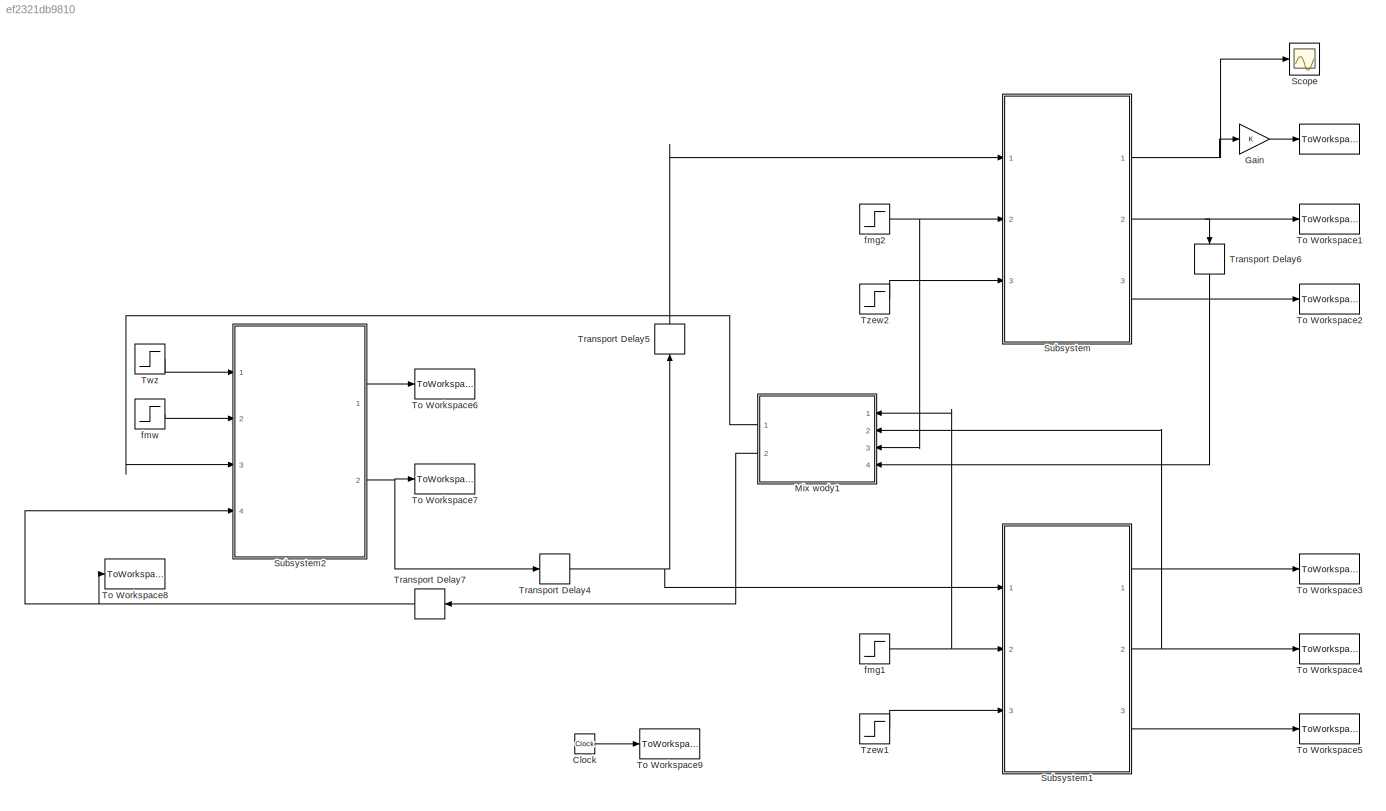
MODEL slx_ef2321db9810
KIND model
CONFIG AbsTol = auto
CONFIG EnableMultiTasking = on
CONFIG FixedStep = auto
CONFIG MaxStep = auto
CONFIG MinStep = auto
CONFIG RelTol = 1e-3
CONFIG SampleTimeConstraint = Unconstrained
CONFIG Solver = ode45
CONFIG SolverName = ode45
CONFIG StartTime = 0.0
CONFIG StopTime = 10.0
BLOCK [ToWorkspace]  
  MaxDataPoints = inf
  Ports = [1]
  SampleTime = -1
  SaveFormat = Structure With Time
  VariableName = Twew2
BLOCK [Clock] Clock
BLOCK [Gain] Gain
  OutDataTypeStr = Inherit: Inherit via internal rule
  ParamDataTypeStr = Inherit: Inherit via internal rule
  SaturateOnIntegerOverflow = off
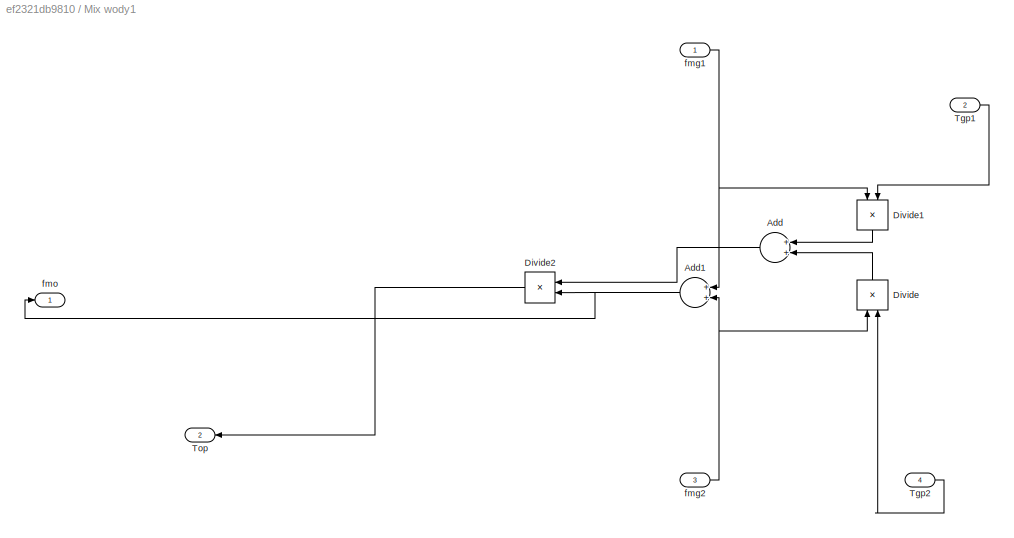
BLOCK [SubSystem] Mix wody1
  Ports = [4, 2]
  RequestExecContextInheritance = off
BLOCK [Sum] Mix wody1/Add
  InputSameDT = off
  OutDataTypeStr = Inherit: Inherit via internal rule
  Ports = [2, 1]
  SaturateOnIntegerOverflow = off
BLOCK [Sum] Mix wody1/Add1
  InputSameDT = off
  OutDataTypeStr = Inherit: Inherit via internal rule
  Ports = [2, 1]
  SaturateOnIntegerOverflow = off
BLOCK [Product] Mix wody1/Divide
  InputSameDT = off
  Inputs = **
  OutDataTypeStr = Inherit: Inherit via internal rule
  Ports = [2, 1]
  RndMeth = Floor
  SaturateOnIntegerOverflow = off
BLOCK [Product] Mix wody1/Divide1
  InputSameDT = off
  Inputs = **
  OutDataTypeStr = Inherit: Inherit via internal rule
  Ports = [2, 1]
  RndMeth = Floor
  SaturateOnIntegerOverflow = off
BLOCK [Product] Mix wody1/Divide2
  InputSameDT = off
  Inputs = */
  OutDataTypeStr = Inherit: Inherit via internal rule
  Ports = [2, 1]
  RndMeth = Floor
  SaturateOnIntegerOverflow = off
BLOCK [Inport] Mix wody1/Tgp1
  IconDisplay = Port number
  Port = 2
BLOCK [Inport] Mix wody1/Tgp2
  IconDisplay = Port number
  Port = 4
BLOCK [Outport] Mix wody1/Top
  IconDisplay = Port number
  Port = 2
BLOCK [Inport] Mix wody1/fmg1
  IconDisplay = Port number
BLOCK [Inport] Mix wody1/fmg2
  IconDisplay = Port number
  Port = 3
BLOCK [Outport] Mix wody1/fmo
  IconDisplay = Port number
BLOCK [Scope] Scope
  Floating = off
  NumInputPorts = 1
  Ports = [1]
  ScopeSpecificationString = Simulink.scopes.TimeScopeBlockCfg('CurrentConfiguration', extmgr.ConfigurationSet(extmgr.Configuration('Core','General UI',true),extmgr.Configuration('Core','Source UI',true),extmgr.Configuration('Sources','WiredSimulink',true,'DataLoggingVariableName','TwewS','DataLogging',true,'DataLoggingLimitDataPoints',true,'DataLoggingSaveFormat','StructureWithTime'),extmgr.Configuration('Visuals','Time Doma...<+1541ch>
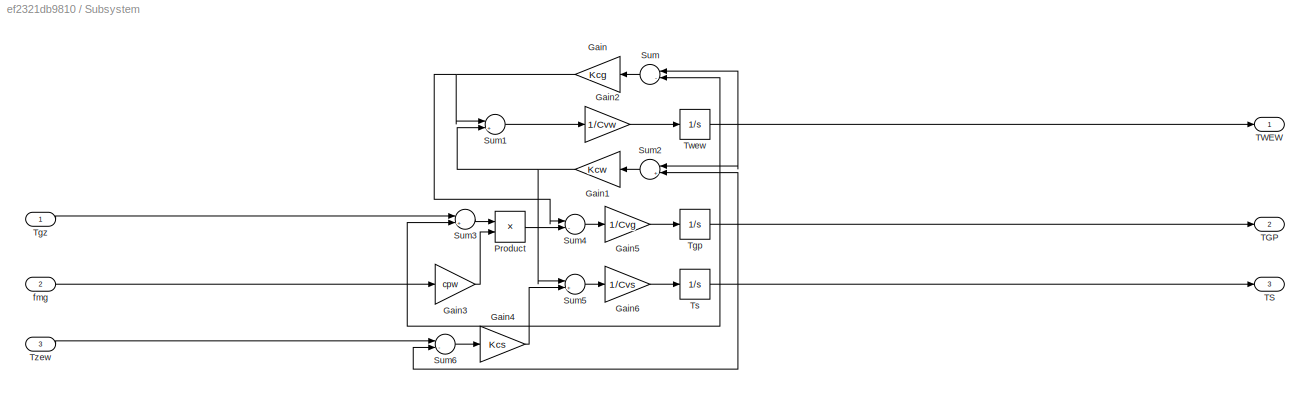
BLOCK [SubSystem] Subsystem
  Ports = [3, 3]
  RequestExecContextInheritance = off
BLOCK [Gain] Subsystem/Gain
  Gain = Kcg
  OutDataTypeStr = Inherit: Inherit via internal rule
  ParamDataTypeStr = Inherit: Inherit via internal rule
  SaturateOnIntegerOverflow = off
BLOCK [Gain] Subsystem/Gain1
  Gain = Kcw
  OutDataTypeStr = Inherit: Inherit via internal rule
  ParamDataTypeStr = Inherit: Inherit via internal rule
  SaturateOnIntegerOverflow = off
BLOCK [Gain] Subsystem/Gain2
  Gain = 1/Cvw
  OutDataTypeStr = Inherit: Inherit via internal rule
  ParamDataTypeStr = Inherit: Inherit via internal rule
  SaturateOnIntegerOverflow = off
BLOCK [Gain] Subsystem/Gain3
  Gain = cpw
  OutDataTypeStr = Inherit: Inherit via internal rule
  ParamDataTypeStr = Inherit: Inherit via internal rule
  SaturateOnIntegerOverflow = off
BLOCK [Gain] Subsystem/Gain4
  Gain = Kcs
  OutDataTypeStr = Inherit: Inherit via internal rule
  ParamDataTypeStr = Inherit: Inherit via internal rule
  SaturateOnIntegerOverflow = off
BLOCK [Gain] Subsystem/Gain5
  Gain = 1/Cvg
  OutDataTypeStr = Inherit: Inherit via internal rule
  ParamDataTypeStr = Inherit: Inherit via internal rule
  SaturateOnIntegerOverflow = off
BLOCK [Gain] Subsystem/Gain6
  Gain = 1/Cvs
  OutDataTypeStr = Inherit: Inherit via internal rule
  ParamDataTypeStr = Inherit: Inherit via internal rule
  SaturateOnIntegerOverflow = off
BLOCK [Product] Subsystem/Product
  InputSameDT = off
  OutDataTypeStr = Inherit: Inherit via internal rule
  Ports = [2, 1]
  RndMeth = Floor
  SaturateOnIntegerOverflow = off
BLOCK [Sum] Subsystem/Sum
  InputSameDT = off
  Inputs = |-+
  OutDataTypeStr = Inherit: Inherit via internal rule
  Ports = [2, 1]
  SaturateOnIntegerOverflow = off
BLOCK [Sum] Subsystem/Sum1
  InputSameDT = off
  Inputs = |+-
  OutDataTypeStr = Inherit: Inherit via internal rule
  Ports = [2, 1]
  SaturateOnIntegerOverflow = off
BLOCK [Sum] Subsystem/Sum2
  InputSameDT = off
  Inputs = |+-
  OutDataTypeStr = Inherit: Inherit via internal rule
  Ports = [2, 1]
  SaturateOnIntegerOverflow = off
BLOCK [Sum] Subsystem/Sum3
  InputSameDT = off
  Inputs = |+-
  OutDataTypeStr = Inherit: Inherit via internal rule
  Ports = [2, 1]
  SaturateOnIntegerOverflow = off
BLOCK [Sum] Subsystem/Sum4
  InputSameDT = off
  Inputs = |-+
  OutDataTypeStr = Inherit: Inherit via internal rule
  Ports = [2, 1]
  SaturateOnIntegerOverflow = off
BLOCK [Sum] Subsystem/Sum5
  InputSameDT = off
  Inputs = |+-
  OutDataTypeStr = Inherit: Inherit via internal rule
  Ports = [2, 1]
  SaturateOnIntegerOverflow = off
BLOCK [Sum] Subsystem/Sum6
  InputSameDT = off
  Inputs = |-+
  OutDataTypeStr = Inherit: Inherit via internal rule
  Ports = [2, 1]
  SaturateOnIntegerOverflow = off
BLOCK [Outport] Subsystem/TGP
  IconDisplay = Port number
  Port = 2
BLOCK [Outport] Subsystem/TS
  IconDisplay = Port number
  Port = 3
BLOCK [Outport] Subsystem/TWEW
  IconDisplay = Port number
BLOCK [Integrator] Subsystem/Tgp
  InitialCondition = Tgp0
  Ports = [1, 1]
BLOCK [Inport] Subsystem/Tgz
  IconDisplay = Port number
BLOCK [Integrator] Subsystem/Ts
  InitialCondition = Ts0
  Ports = [1, 1]
BLOCK [Integrator] Subsystem/Twew
  InitialCondition = Twew0
  Ports = [1, 1]
BLOCK [Inport] Subsystem/Tzew
  IconDisplay = Port number
  Port = 3
BLOCK [Inport] Subsystem/fmg
  IconDisplay = Port number
  Port = 2
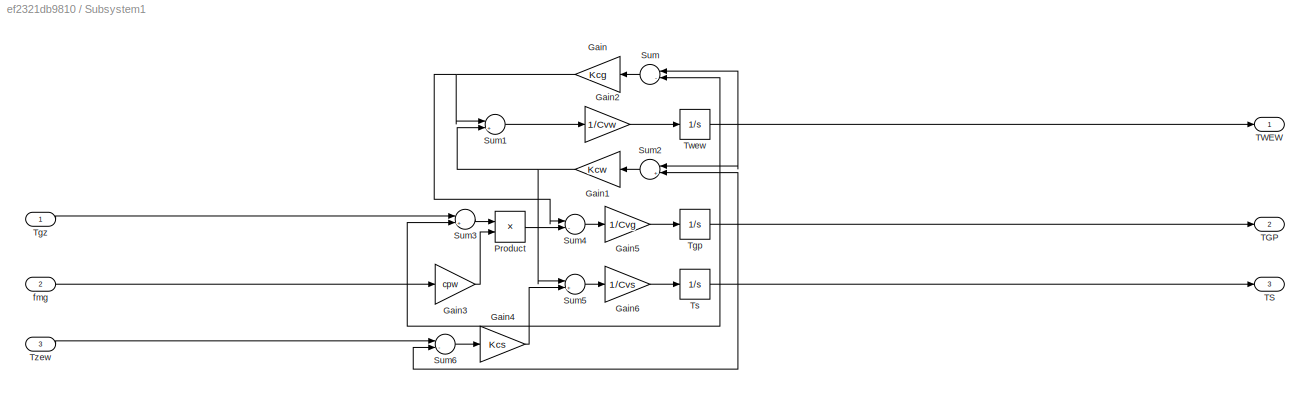
BLOCK [SubSystem] Subsystem1
  Ports = [3, 3]
  RequestExecContextInheritance = off
BLOCK [Gain] Subsystem1/Gain
  Gain = Kcg
  OutDataTypeStr = Inherit: Inherit via internal rule
  ParamDataTypeStr = Inherit: Inherit via internal rule
  SaturateOnIntegerOverflow = off
BLOCK [Gain] Subsystem1/Gain1
  Gain = Kcw
  OutDataTypeStr = Inherit: Inherit via internal rule
  ParamDataTypeStr = Inherit: Inherit via internal rule
  SaturateOnIntegerOverflow = off
BLOCK [Gain] Subsystem1/Gain2
  Gain = 1/Cvw
  OutDataTypeStr = Inherit: Inherit via internal rule
  ParamDataTypeStr = Inherit: Inherit via internal rule
  SaturateOnIntegerOverflow = off
BLOCK [Gain] Subsystem1/Gain3
  Gain = cpw
  OutDataTypeStr = Inherit: Inherit via internal rule
  ParamDataTypeStr = Inherit: Inherit via internal rule
  SaturateOnIntegerOverflow = off
BLOCK [Gain] Subsystem1/Gain4
  Gain = Kcs
  OutDataTypeStr = Inherit: Inherit via internal rule
  ParamDataTypeStr = Inherit: Inherit via internal rule
  SaturateOnIntegerOverflow = off
BLOCK [Gain] Subsystem1/Gain5
  Gain = 1/Cvg
  OutDataTypeStr = Inherit: Inherit via internal rule
  ParamDataTypeStr = Inherit: Inherit via internal rule
  SaturateOnIntegerOverflow = off
BLOCK [Gain] Subsystem1/Gain6
  Gain = 1/Cvs
  OutDataTypeStr = Inherit: Inherit via internal rule
  ParamDataTypeStr = Inherit: Inherit via internal rule
  SaturateOnIntegerOverflow = off
BLOCK [Product] Subsystem1/Product
  InputSameDT = off
  OutDataTypeStr = Inherit: Inherit via internal rule
  Ports = [2, 1]
  RndMeth = Floor
  SaturateOnIntegerOverflow = off
BLOCK [Sum] Subsystem1/Sum
  InputSameDT = off
  Inputs = |-+
  OutDataTypeStr = Inherit: Inherit via internal rule
  Ports = [2, 1]
  SaturateOnIntegerOverflow = off
BLOCK [Sum] Subsystem1/Sum1
  InputSameDT = off
  Inputs = |+-
  OutDataTypeStr = Inherit: Inherit via internal rule
  Ports = [2, 1]
  SaturateOnIntegerOverflow = off
BLOCK [Sum] Subsystem1/Sum2
  InputSameDT = off
  Inputs = |+-
  OutDataTypeStr = Inherit: Inherit via internal rule
  Ports = [2, 1]
  SaturateOnIntegerOverflow = off
BLOCK [Sum] Subsystem1/Sum3
  InputSameDT = off
  Inputs = |+-
  OutDataTypeStr = Inherit: Inherit via internal rule
  Ports = [2, 1]
  SaturateOnIntegerOverflow = off
BLOCK [Sum] Subsystem1/Sum4
  InputSameDT = off
  Inputs = |-+
  OutDataTypeStr = Inherit: Inherit via internal rule
  Ports = [2, 1]
  SaturateOnIntegerOverflow = off
BLOCK [Sum] Subsystem1/Sum5
  InputSameDT = off
  Inputs = |+-
  OutDataTypeStr = Inherit: Inherit via internal rule
  Ports = [2, 1]
  SaturateOnIntegerOverflow = off
BLOCK [Sum] Subsystem1/Sum6
  InputSameDT = off
  Inputs = |-+
  OutDataTypeStr = Inherit: Inherit via internal rule
  Ports = [2, 1]
  SaturateOnIntegerOverflow = off
BLOCK [Outport] Subsystem1/TGP
  IconDisplay = Port number
  Port = 2
BLOCK [Outport] Subsystem1/TS
  IconDisplay = Port number
  Port = 3
BLOCK [Outport] Subsystem1/TWEW
  IconDisplay = Port number
BLOCK [Integrator] Subsystem1/Tgp
  InitialCondition = Tgp0
  Ports = [1, 1]
BLOCK [Inport] Subsystem1/Tgz
  IconDisplay = Port number
BLOCK [Integrator] Subsystem1/Ts
  InitialCondition = Ts0
  Ports = [1, 1]
BLOCK [Integrator] Subsystem1/Twew
  InitialCondition = Twew0
  Ports = [1, 1]
BLOCK [Inport] Subsystem1/Tzew
  IconDisplay = Port number
  Port = 3
BLOCK [Inport] Subsystem1/fmg
  IconDisplay = Port number
  Port = 2
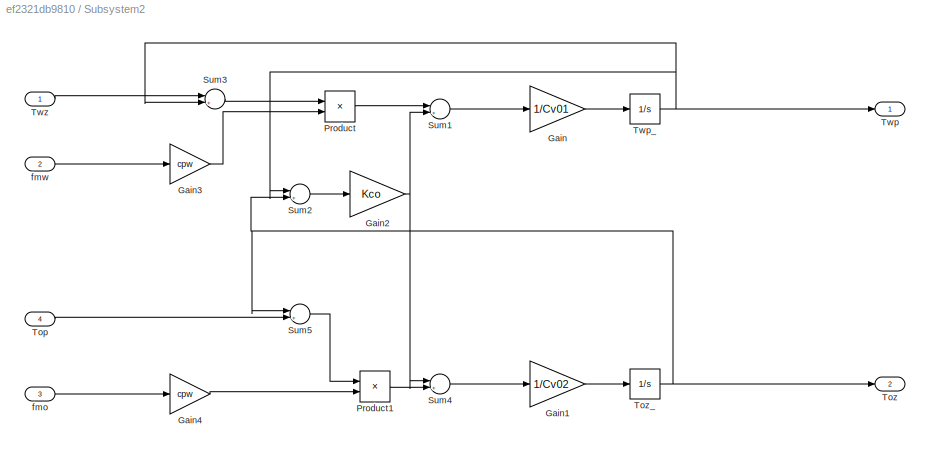
BLOCK [SubSystem] Subsystem2
  Ports = [4, 2]
  RequestExecContextInheritance = off
BLOCK [Gain] Subsystem2/Gain
  Gain = 1/Cv01
  OutDataTypeStr = Inherit: Inherit via internal rule
  ParamDataTypeStr = Inherit: Inherit via internal rule
  SaturateOnIntegerOverflow = off
BLOCK [Gain] Subsystem2/Gain1
  Gain = 1/Cv02
  OutDataTypeStr = Inherit: Inherit via internal rule
  ParamDataTypeStr = Inherit: Inherit via internal rule
  SaturateOnIntegerOverflow = off
BLOCK [Gain] Subsystem2/Gain2
  Gain = Kco
  OutDataTypeStr = Inherit: Inherit via internal rule
  ParamDataTypeStr = Inherit: Inherit via internal rule
  SaturateOnIntegerOverflow = off
BLOCK [Gain] Subsystem2/Gain3
  Gain = cpw
  OutDataTypeStr = Inherit: Inherit via internal rule
  ParamDataTypeStr = Inherit: Inherit via internal rule
  SaturateOnIntegerOverflow = off
BLOCK [Gain] Subsystem2/Gain4
  Gain = cpw
  OutDataTypeStr = Inherit: Inherit via internal rule
  ParamDataTypeStr = Inherit: Inherit via internal rule
  SaturateOnIntegerOverflow = off
BLOCK [Product] Subsystem2/Product
  InputSameDT = off
  OutDataTypeStr = Inherit: Inherit via internal rule
  Ports = [2, 1]
  RndMeth = Floor
  SaturateOnIntegerOverflow = off
BLOCK [Product] Subsystem2/Product1
  InputSameDT = off
  OutDataTypeStr = Inherit: Inherit via internal rule
  Ports = [2, 1]
  RndMeth = Floor
  SaturateOnIntegerOverflow = off
BLOCK [Sum] Subsystem2/Sum1
  InputSameDT = off
  Inputs = |+-
  OutDataTypeStr = Inherit: Inherit via internal rule
  Ports = [2, 1]
  SaturateOnIntegerOverflow = off
BLOCK [Sum] Subsystem2/Sum2
  InputSameDT = off
  Inputs = |+-
  OutDataTypeStr = Inherit: Inherit via internal rule
  Ports = [2, 1]
  SaturateOnIntegerOverflow = off
BLOCK [Sum] Subsystem2/Sum3
  InputSameDT = off
  Inputs = |+-
  OutDataTypeStr = Inherit: Inherit via internal rule
  Ports = [2, 1]
  SaturateOnIntegerOverflow = off
BLOCK [Sum] Subsystem2/Sum4
  InputSameDT = off
  Inputs = |+-
  OutDataTypeStr = Inherit: Inherit via internal rule
  Ports = [2, 1]
  SaturateOnIntegerOverflow = off
BLOCK [Sum] Subsystem2/Sum5
  InputSameDT = off
  Inputs = |+-
  OutDataTypeStr = Inherit: Inherit via internal rule
  Ports = [2, 1]
  SaturateOnIntegerOverflow = off
BLOCK [Inport] Subsystem2/Top
  IconDisplay = Port number
  Port = 4
BLOCK [Outport] Subsystem2/Toz
  IconDisplay = Port number
  Port = 2
BLOCK [Integrator] Subsystem2/Toz_
  InitialCondition = Toz0
  Ports = [1, 1]
BLOCK [Outport] Subsystem2/Twp
  IconDisplay = Port number
BLOCK [Integrator] Subsystem2/Twp_
  InitialCondition = Twp0
  Ports = [1, 1]
BLOCK [Inport] Subsystem2/Twz
  IconDisplay = Port number
BLOCK [Inport] Subsystem2/fmo
  IconDisplay = Port number
  Port = 3
BLOCK [Inport] Subsystem2/fmw
  IconDisplay = Port number
  Port = 2
BLOCK [ToWorkspace] To Workspace1
  MaxDataPoints = inf
  Ports = [1]
  SampleTime = -1
  VariableName = Tgp2
BLOCK [ToWorkspace] To Workspace2
  MaxDataPoints = inf
  Ports = [1]
  SampleTime = -1
  VariableName = Ts2
BLOCK [ToWorkspace] To Workspace3
  MaxDataPoints = inf
  Ports = [1]
  SampleTime = -1
  VariableName = Twew1
BLOCK [ToWorkspace] To Workspace4
  MaxDataPoints = inf
  Ports = [1]
  SampleTime = -1
  VariableName = Tgp1
BLOCK [ToWorkspace] To Workspace5
  MaxDataPoints = inf
  Ports = [1]
  SampleTime = -1
  VariableName = Ts1
BLOCK [ToWorkspace] To Workspace6
  MaxDataPoints = inf
  Ports = [1]
  SampleTime = -1
  VariableName = Twp
BLOCK [ToWorkspace] To Workspace7
  MaxDataPoints = inf
  Ports = [1]
  SampleTime = -1
  VariableName = Toz
BLOCK [ToWorkspace] To Workspace8
  MaxDataPoints = inf
  Ports = [1]
  SampleTime = -1
  VariableName = Top
BLOCK [ToWorkspace] To Workspace9
  FixptAsFi = on
  MaxDataPoints = inf
  Ports = [1]
  SampleTime = -1
  Save2DSignal = 3-D array (concatenate along third dimension)
  VariableName = t
BLOCK [TransportDelay] Transport Delay4
  DelayTime = Tdelay1
  InitialOutput = Toz0
  Ports = [1, 1]
BLOCK [TransportDelay] Transport Delay5
  DelayTime = Tdelay2
  InitialOutput = Toz0
  Ports = [1, 1]
BLOCK [TransportDelay] Transport Delay6
  DelayTime = Tdelay2
  InitialOutput = Tgp2_0
  Ports = [1, 1]
BLOCK [TransportDelay] Transport Delay7
  DelayTime = Tdelay1
  InitialOutput = (Tgp1_0*fmg1_0+Tgp2_0*fmg2_0)/(fmg1_0+fmg2_0)
  Ports = [1, 1]
BLOCK [Step] Twz
  After = Twz0+dTwz
  Before = Twz0
  SampleTime = 0
  Time = steptime
BLOCK [Step] Tzew1
  After = Tzew0+dTzew
  Before = Tzew0
  SampleTime = 0
  Time = steptime
BLOCK [Step] Tzew2
  After = Tzew0+dTzew
  Before = Tzew0
  SampleTime = 0
  Time = steptime
BLOCK [Step] fmg1
  After = fmg1_0
  Before = fmg1_0
  SampleTime = 0
  Time = steptime
BLOCK [Step] fmg2
  After = fmg2_0
  Before = fmg2_0
  SampleTime = 0
  Time = steptime
BLOCK [Step] fmw
  After = fmw0+dfmw
  Before = fmw0
  SampleTime = 0
  Time = steptime
LINE Clock:1 -> To Workspace9:1
LINE Gain:1 ->  :1
NET Mix wody1/Add1:1 -> Mix wody1/Divide2:2, Mix wody1/fmo:1
LINE Mix wody1/Add:1 -> Mix wody1/Divide2:1
LINE Mix wody1/Divide1:1 -> Mix wody1/Add:1
LINE Mix wody1/Divide2:1 -> Mix wody1/Top:1
LINE Mix wody1/Divide:1 -> Mix wody1/Add:2
LINE Mix wody1/Tgp1:1 -> Mix wody1/Divide1:2
LINE Mix wody1/Tgp2:1 -> Mix wody1/Divide:2
NET Mix wody1/fmg1:1 -> Mix wody1/Add1:1, Mix wody1/Divide1:1
NET Mix wody1/fmg2:1 -> Mix wody1/Add1:2, Mix wody1/Divide:1
LINE Mix wody1:1 -> Subsystem2:3
LINE Mix wody1:2 -> Transport Delay7:1
NET Subsystem/Gain1:1 -> Subsystem/Sum1:2, Subsystem/Sum5:1
LINE Subsystem/Gain2:1 -> Subsystem/Twew:1
LINE Subsystem/Gain3:1 -> Subsystem/Product:2
LINE Subsystem/Gain4:1 -> Subsystem/Sum5:2
LINE Subsystem/Gain5:1 -> Subsystem/Tgp:1
LINE Subsystem/Gain6:1 -> Subsystem/Ts:1
NET Subsystem/Gain:1 -> Subsystem/Sum1:1, Subsystem/Sum4:1
LINE Subsystem/Product:1 -> Subsystem/Sum4:2
LINE Subsystem/Sum1:1 -> Subsystem/Gain2:1
LINE Subsystem/Sum2:1 -> Subsystem/Gain1:1
LINE Subsystem/Sum3:1 -> Subsystem/Product:1
LINE Subsystem/Sum4:1 -> Subsystem/Gain5:1
LINE Subsystem/Sum5:1 -> Subsystem/Gain6:1
LINE Subsystem/Sum6:1 -> Subsystem/Gain4:1
LINE Subsystem/Sum:1 -> Subsystem/Gain:1
NET Subsystem/Tgp:1 -> Subsystem/Sum3:2, Subsystem/Sum:2, Subsystem/TGP:1
LINE Subsystem/Tgz:1 -> Subsystem/Sum3:1
NET Subsystem/Ts:1 -> Subsystem/Sum2:2, Subsystem/Sum6:2, Subsystem/TS:1
NET Subsystem/Twew:1 -> Subsystem/Sum2:1, Subsystem/Sum:1, Subsystem/TWEW:1
LINE Subsystem/Tzew:1 -> Subsystem/Sum6:1
LINE Subsystem/fmg:1 -> Subsystem/Gain3:1
NET Subsystem1/Gain1:1 -> Subsystem1/Sum1:2, Subsystem1/Sum5:1
LINE Subsystem1/Gain2:1 -> Subsystem1/Twew:1
LINE Subsystem1/Gain3:1 -> Subsystem1/Product:2
LINE Subsystem1/Gain4:1 -> Subsystem1/Sum5:2
LINE Subsystem1/Gain5:1 -> Subsystem1/Tgp:1
LINE Subsystem1/Gain6:1 -> Subsystem1/Ts:1
NET Subsystem1/Gain:1 -> Subsystem1/Sum1:1, Subsystem1/Sum4:1
LINE Subsystem1/Product:1 -> Subsystem1/Sum4:2
LINE Subsystem1/Sum1:1 -> Subsystem1/Gain2:1
LINE Subsystem1/Sum2:1 -> Subsystem1/Gain1:1
LINE Subsystem1/Sum3:1 -> Subsystem1/Product:1
LINE Subsystem1/Sum4:1 -> Subsystem1/Gain5:1
LINE Subsystem1/Sum5:1 -> Subsystem1/Gain6:1
LINE Subsystem1/Sum6:1 -> Subsystem1/Gain4:1
LINE Subsystem1/Sum:1 -> Subsystem1/Gain:1
NET Subsystem1/Tgp:1 -> Subsystem1/Sum3:2, Subsystem1/Sum:2, Subsystem1/TGP:1
LINE Subsystem1/Tgz:1 -> Subsystem1/Sum3:1
NET Subsystem1/Ts:1 -> Subsystem1/Sum2:2, Subsystem1/Sum6:2, Subsystem1/TS:1
NET Subsystem1/Twew:1 -> Subsystem1/Sum2:1, Subsystem1/Sum:1, Subsystem1/TWEW:1
LINE Subsystem1/Tzew:1 -> Subsystem1/Sum6:1
LINE Subsystem1/fmg:1 -> Subsystem1/Gain3:1
LINE Subsystem1:1 -> To Workspace3:1
NET Subsystem1:2 -> Mix wody1:2, To Workspace4:1
LINE Subsystem1:3 -> To Workspace5:1
LINE Subsystem2/Gain1:1 -> Subsystem2/Toz_:1
NET Subsystem2/Gain2:1 -> Subsystem2/Sum1:2, Subsystem2/Sum4:1
LINE Subsystem2/Gain3:1 -> Subsystem2/Product:2
LINE Subsystem2/Gain4:1 -> Subsystem2/Product1:2
LINE Subsystem2/Gain:1 -> Subsystem2/Twp_:1
LINE Subsystem2/Product1:1 -> Subsystem2/Sum4:2
LINE Subsystem2/Product:1 -> Subsystem2/Sum1:1
LINE Subsystem2/Sum1:1 -> Subsystem2/Gain:1
LINE Subsystem2/Sum2:1 -> Subsystem2/Gain2:1
LINE Subsystem2/Sum3:1 -> Subsystem2/Product:1
LINE Subsystem2/Sum4:1 -> Subsystem2/Gain1:1
LINE Subsystem2/Sum5:1 -> Subsystem2/Product1:1
LINE Subsystem2/Top:1 -> Subsystem2/Sum5:2
NET Subsystem2/Toz_:1 -> Subsystem2/Sum2:2, Subsystem2/Sum5:1, Subsystem2/Toz:1
NET Subsystem2/Twp_:1 -> Subsystem2/Sum2:1, Subsystem2/Sum3:2, Subsystem2/Twp:1
LINE Subsystem2/Twz:1 -> Subsystem2/Sum3:1
LINE Subsystem2/fmo:1 -> Subsystem2/Gain4:1
LINE Subsystem2/fmw:1 -> Subsystem2/Gain3:1
LINE Subsystem2:1 -> To Workspace6:1
NET Subsystem2:2 -> To Workspace7:1, Transport Delay4:1
NET Subsystem:1 -> Gain:1, Scope:1
NET Subsystem:2 -> To Workspace1:1, Transport Delay6:1
LINE Subsystem:3 -> To Workspace2:1
NET Transport Delay4:1 -> Subsystem1:1, Transport Delay5:1
LINE Transport Delay5:1 -> Subsystem:1
LINE Transport Delay6:1 -> Mix wody1:4
NET Transport Delay7:1 -> Subsystem2:4, To Workspace8:1
LINE Twz:1 -> Subsystem2:1
LINE Tzew1:1 -> Subsystem1:3
LINE Tzew2:1 -> Subsystem:3
NET fmg1:1 -> Mix wody1:1, Subsystem1:2
NET fmg2:1 -> Mix wody1:3, Subsystem:2
LINE fmw:1 -> Subsystem2:2
note: NET lines group one-source signal fan-out (src -> all destinations, sorted); 1:1 wires keep LINE
